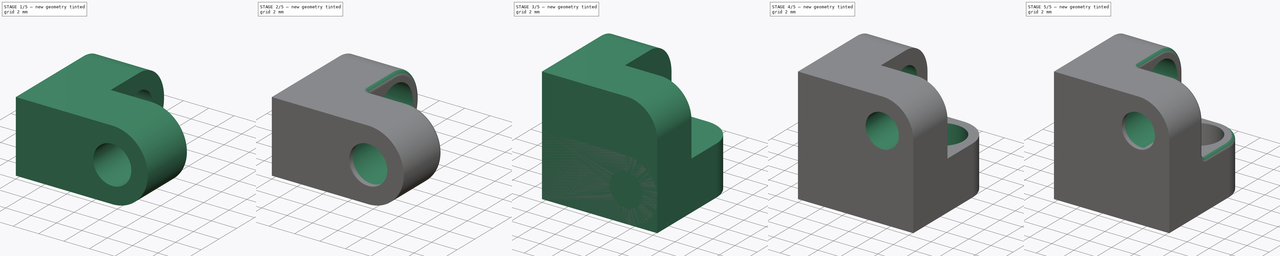
[diagram: build sequence overview — one tinted view per stage of 5, left to right]
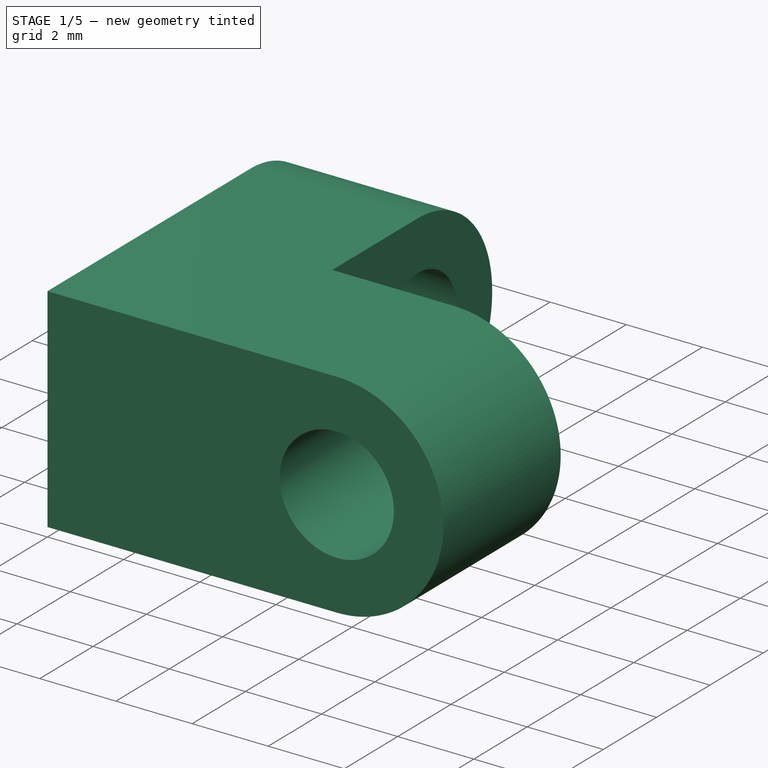
[diagram: stage 1 of 5 — iso view after this stage's code; geometry added in this stage tinted green]
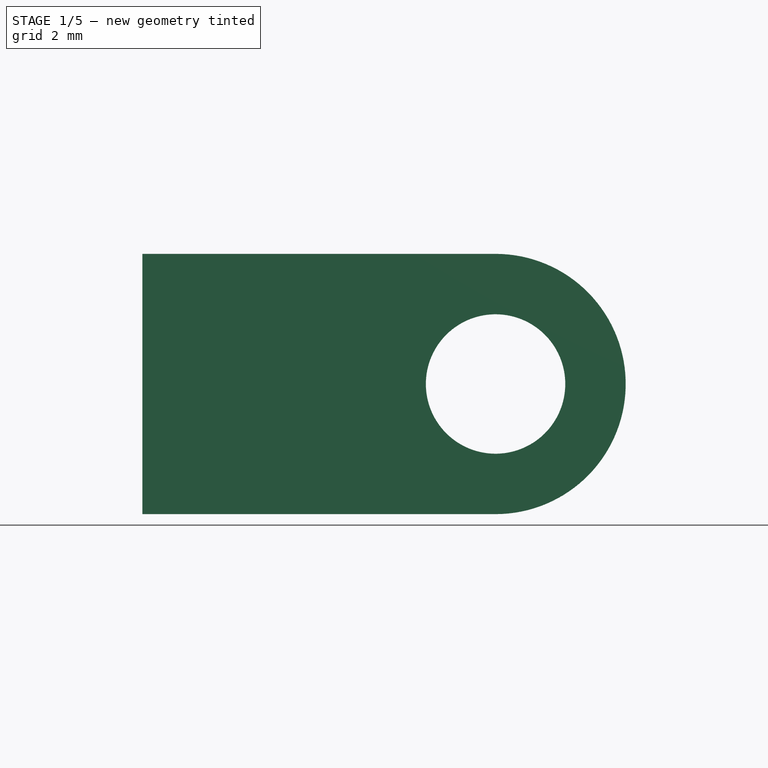
[diagram: stage 1 of 5 — front view after this stage's code; geometry added in this stage tinted green]
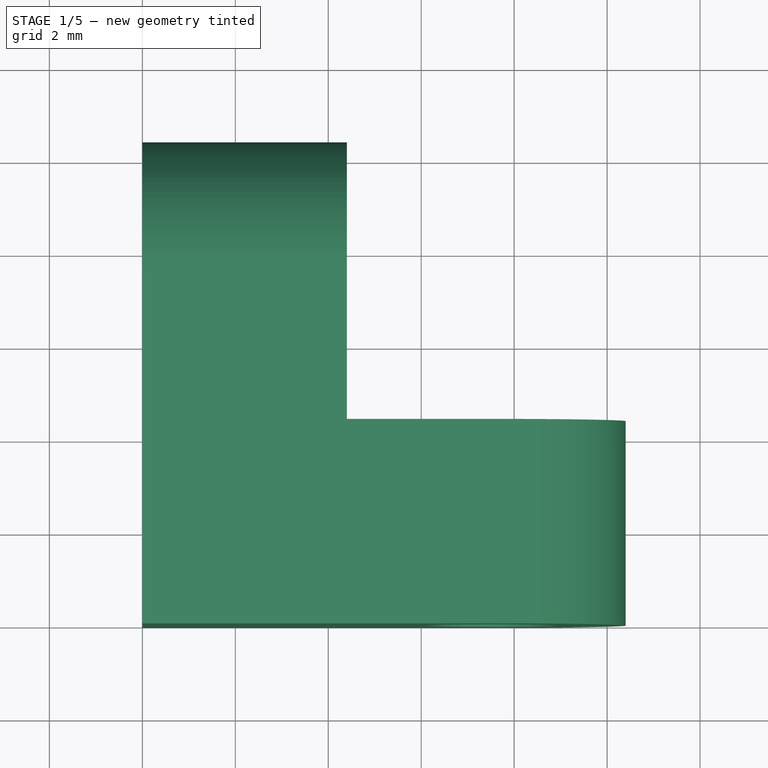
[diagram: stage 1 of 5 — top view after this stage's code; geometry added in this stage tinted green]
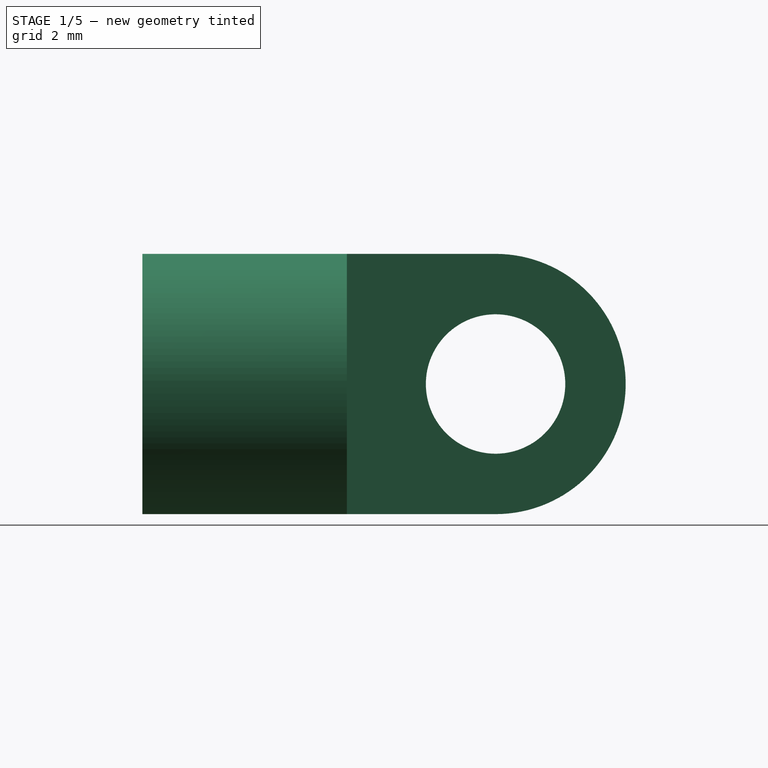
[diagram: stage 1 of 5 — right view after this stage's code; geometry added in this stage tinted green]
FCSTD DOCUMENT  (FreeCAD 1.1R)
Label: parametric-corner-brackets-hole
License: All rights reserved
LicenseURL: https://en.wikipedia.org/wiki/All_rights_reserved
objects: Sketcher::SketchObject×20, PartDesign::Pocket×10, Part::DatumPlane×6, PartDesign::AdditiveLoft×5, PartDesign::Fillet×4, App::Point×2, PartDesign::Body×2, Spreadsheet::Sheet×1, App::DocumentObjectGroup×1
note: 99 computed .brp shape members not serialized (recipe doc carries the construction recipe); baked Part::Feature solids carry a one-line shape summary decoded from their .brp

FEATURE [PartDesign::Body] Body  label="3 Ways Bracket"
  AllowCompound = false
  Group = -> [Sketch,Sketch001,Sketch002,Sketch003,Sketch004,Sketch005,Sketch006,Sketch007,Sketch008,Sketch009,Sketch010,Sketch011,AdditiveLoft,AdditiveLoft001,AdditiveLoft002,Pocket,Pocket001,Pocket002,Pocket003,Pocket004,Pocket005,Fillet,Fillet001]
  Origin = -> Origin
  Placement = pos=(-11.4,0,0) rot=(1,0,0;1.5708rad)
  Tip = -> Fillet001
  expr: .Placement.Base.x = -1.5 * Spreadsheet.center_offset_mm
FEATURE [Part::DatumPlane] DatumPlane003  label="R DatumPlane001"
  AttachmentOffset = pos=(0,0,-4.4) rot=(0,0,1;0rad)
  AttachmentSupport = -> [XZ_Plane001]
  MapMode = 5
  Placement = pos=(0,4.4,-1e-15) rot=(1,0,0;1.5708rad)
  expr: .AttachmentOffset.Base.y = 0
  expr: .AttachmentOffset.Base.z = -1 * Spreadsheet.bracket_thickness_mm
FEATURE [Part::DatumPlane] DatumPlane004  label="L DatumPlane001"
  AttachmentOffset = pos=(0,0,4.4) rot=(0,0,1;0rad)
  AttachmentSupport = -> [YZ_Plane001]
  MapMode = 5
  Placement = pos=(4.4,0,0) rot=(0.57735,0.57735,0.57735;2.0944rad)
  expr: .AttachmentOffset.Base.z = Spreadsheet.bracket_thickness_mm
FEATURE [Part::DatumPlane] DatumPlane005  label="Top DatumPlane001"
  AttachmentOffset = pos=(0,0,4.4) rot=(0,0,1;0rad)
  AttachmentSupport = -> [XY_Plane001]
  MapMode = 5
  Placement = pos=(0,0,4.4) rot=(0,0,1;0rad)
  expr: .AttachmentOffset.Base.z = Spreadsheet.bracket_thickness_mm
FEATURE [App::DocumentObjectGroup] Group  label="Origins & DatumPlane"
  Group = -> [DatumPlane,DatumPlane001,DatumPlane002,DatumPlane003,DatumPlane004,DatumPlane005]
FEATURE [App::Point] Origin003
  Role = Origin
FEATURE [Sketcher::SketchObject] Sketch014  label="L Hole (s)001"
  ArcFitTolerance = 1e-06
  AttachmentSupport = -> [Origin002]
  ExternalTypes = [0]
  FullyConstrained = true
  MakeInternals = false
  MapMode = 5
  Placement = pos=(0,0,0) rot=(0.57735,0.57735,0.57735;2.0944rad)
  expr: Constraints[0] = Spreadsheet.thread_diameter_mm
  expr: Constraints[1] = Spreadsheet.outter_arc_radius_mm
  expr: Constraints[2] = Spreadsheet.center_offset_mm
  sketch-geometry (1):
    g0: Circle CenterX=7.6 CenterY=2.8 CenterZ=0 NormalX=0 NormalY=0 NormalZ=1 AngleXU=0 Radius=1.5
  constraints (3):
    c: Diameter(g0) = 3
    c: Distance(g0,g-1) = 2.8
    c: Distance(g0,g-2) = 7.6
FEATURE [Sketcher::SketchObject] Sketch015  label="L Nut (s)001"
  ArcFitTolerance = 1e-06
  AttachmentSupport = -> [DatumPlane004]
  ExternalTypes = [0]
  FullyConstrained = true
  MakeInternals = false
  MapMode = 5
  Placement = pos=(4.4,0,0) rot=(0.57735,0.57735,0.57735;2.0944rad)
  expr: Constraints[0] = Spreadsheet.outter_arc_radius_mm
  expr: Constraints[1] = Spreadsheet.center_offset_mm
  expr: Constraints[2] = Spreadsheet.insert_diameter_mm
  sketch-geometry (1):
    g0: Circle CenterX=7.6 CenterY=2.8 CenterZ=0 NormalX=0 NormalY=0 NormalZ=1 AngleXU=0 Radius=2
  constraints (3):
    c: Distance(g0,g-1) = 2.8
    c: Distance(g0,g-2) = 7.6
    c: Diameter(g0) = 4
FEATURE [Sketcher::SketchObject] Sketch016  label="R Hole (s)001"
  ArcFitTolerance = 1e-06
  AttachmentSupport = -> [Origin002]
  ExternalTypes = [0]
  FullyConstrained = true
  MakeInternals = false
  MapMode = 5
  Placement = pos=(0,0,0) rot=(1,0,0;1.5708rad)
  expr: Constraints[0] = Spreadsheet.thread_diameter_mm
  expr: Constraints[1] = Spreadsheet.outter_arc_radius_mm
  expr: Constraints[2] = Spreadsheet.center_offset_mm
  sketch-geometry (1):
    g0: Circle CenterX=7.6 CenterY=2.8 CenterZ=0 NormalX=0 NormalY=0 NormalZ=1 AngleXU=0 Radius=1.5
  constraints (3):
    c: Diameter(g0) = 3
    c: Distance(g0,g-1) = 2.8
    c: Distance(g0,g-2) = 7.6
FEATURE [Sketcher::SketchObject] Sketch017  label="R Nut (s)001"
  ArcFitTolerance = 1e-06
  AttachmentSupport = -> [DatumPlane003]
  ExternalTypes = [0]
  FullyConstrained = true
  MakeInternals = false
  MapMode = 5
  Placement = pos=(0,4.4,-1e-15) rot=(1,0,0;1.5708rad)
  expr: Constraints[0] = Spreadsheet.center_offset_mm
  expr: Constraints[1] = Spreadsheet.outter_arc_radius_mm
  expr: Constraints[2] = Spreadsheet.insert_diameter_mm
  sketch-geometry (1):
    g0: Circle CenterX=7.6 CenterY=2.8 CenterZ=0 NormalX=0 NormalY=0 NormalZ=1 AngleXU=0 Radius=2
  constraints (3):
    c: Distance(g0,g-2) = 7.6
    c: Distance(g0,g-1) = 2.8
    c: Diameter(g0) = 4
FEATURE [Sketcher::SketchObject] Sketch018  label="R Face (s)001"
  ArcFitTolerance = 1e-06
  AttachmentSupport = -> [Origin002]
  ExternalTypes = [0]
  FullyConstrained = true
  MakeInternals = false
  MapMode = 5
  Placement = pos=(0,0,0) rot=(1,0,0;1.5708rad)
  expr: Constraints[1] = Spreadsheet.center_offset_mm
  expr: Constraints[2] = Spreadsheet.outter_arc_radius_mm
  sketch-geometry (5):
    g0: ArcOfCircle CenterX=7.6 CenterY=2.8 CenterZ=0 NormalX=0 NormalY=0 NormalZ=1 AngleXU=0 Radius=2.8 StartAngle=4.71239 EndAngle=7.85398
    g1: LineSegment StartX=7.6 StartY=5.6 StartZ=0 EndX=0 EndY=5.6 EndZ=0
    g2: LineSegment StartX=0 StartY=5.6 StartZ=0 EndX=0 EndY=0 EndZ=0
    g3: LineSegment StartX=0 StartY=0 StartZ=0 EndX=7.6 EndY=0 EndZ=0
    g4: LineSegment [constr] StartX=0 StartY=0 StartZ=0 EndX=93.8343 EndY=34.5705 EndZ=0
  constraints (14):
    c: Angle(g0) = 3.14159
    c: Distance(g0,g-2) = 7.6
    c: Distance(g0,g0) = 2.8
    c: PointOnObject(g1,g-2)
    c: Horizontal(g1)
    c: Coincident(g1,g2)
    c: Coincident(g2,g-1)
    c: Coincident(g2,g3)
    c: PointOnObject(g3,g-1)
    c: Coincident(g4,g2)
    c: Distance(g4,g4) = 100
    c: Tangent(g1,g0) = -1.5708
    c: PointOnObject(g0,g4)
    c: Coincident(g0,g3)
FEATURE [Sketcher::SketchObject] Sketch020  label="L Face (s)001"
  ArcFitTolerance = 1e-06
  AttachmentSupport = -> [Origin002]
  ExternalTypes = [0]
  FullyConstrained = true
  MakeInternals = false
  MapMode = 5
  Placement = pos=(0,0,0) rot=(0.57735,0.57735,0.57735;2.0944rad)
  expr: Constraints[1] = Spreadsheet.center_offset_mm
  expr: Constraints[2] = Spreadsheet.outter_arc_radius_mm
  sketch-geometry (5):
    g0: ArcOfCircle CenterX=7.6 CenterY=2.8 CenterZ=0 NormalX=0 NormalY=0 NormalZ=1 AngleXU=0 Radius=2.8 StartAngle=4.71239 EndAngle=7.85398
    g1: LineSegment [constr] StartX=0 StartY=0 StartZ=0 EndX=93.8343 EndY=34.5705 EndZ=0
    g2: LineSegment StartX=7.6 StartY=5.6 StartZ=0 EndX=0 EndY=5.6 EndZ=0
    g3: LineSegment StartX=0 StartY=5.6 StartZ=0 EndX=0 EndY=0 EndZ=0
    g4: LineSegment StartX=0 StartY=0 StartZ=0 EndX=7.6 EndY=0 EndZ=0
  constraints (14):
    c: Angle(g0) = 3.14159
    c: Distance(g0,g-2) = 7.6
    c: Distance(g0,g0) = 2.8
    c: Coincident(g1,g-1)
    c: PointOnObject(g0,g1)
    c: Distance(g1,g1) = 100
    c: PointOnObject(g2,g-2)
    c: Horizontal(g2)
    c: Coincident(g2,g3)
    c: Coincident(g3,g1)
    c: Coincident(g3,g4)
    c: PointOnObject(g4,g-1)
    c: Tangent(g2,g0) = -1.5708
    c: Coincident(g0,g4)
FEATURE [Sketcher::SketchObject] Sketch021  label="R Face Top (s)001"
  ArcFitTolerance = 1e-06
  AttachmentSupport = -> [DatumPlane003]
  ExternalTypes = [0]
  FullyConstrained = true
  MakeInternals = false
  MapMode = 5
  Placement = pos=(0,4.4,-1e-15) rot=(1,0,0;1.5708rad)
  expr: Constraints[1] = Spreadsheet.center_offset_mm
  expr: Constraints[2] = Spreadsheet.outter_arc_radius_mm
  sketch-geometry (5):
    g0: ArcOfCircle CenterX=7.6 CenterY=2.8 CenterZ=0 NormalX=0 NormalY=0 NormalZ=1 AngleXU=0 Radius=2.8 StartAngle=4.71239 EndAngle=7.85398
    g1: LineSegment [constr] StartX=0 StartY=0 StartZ=0 EndX=93.8343 EndY=34.5705 EndZ=0
    g2: LineSegment StartX=7.6 StartY=5.6 StartZ=0 EndX=0 EndY=5.6 EndZ=0
    g3: LineSegment StartX=0 StartY=5.6 StartZ=0 EndX=0 EndY=0 EndZ=0
    g4: LineSegment StartX=0 StartY=0 StartZ=0 EndX=7.6 EndY=0 EndZ=0
  constraints (14):
    c: Angle(g0) = 3.14159
    c: Distance(g0,g-2) = 7.6
    c: Distance(g0,g0) = 2.8
    c: Coincident(g1,g-1)
    c: PointOnObject(g0,g1)
    c: Distance(g1,g1) = 100
    c: PointOnObject(g2,g-2)
    c: Horizontal(g2)
    c: Coincident(g2,g3)
    c: Coincident(g3,g1)
    c: Coincident(g3,g4)
    c: PointOnObject(g4,g-1)
    c: Tangent(g2,g0) = -1.5708
    c: Coincident(g0,g4)
FEATURE [PartDesign::AdditiveLoft] AdditiveLoft003  label="R Face001"
  Closed = true
  Placement = pos=(0,4.4,-1e-15) rot=(1,0,0;1.5708rad)
  Profile = -> Sketch021
  Refine = true
  Ruled = true
  Sections = -> [Sketch018]
  Suppressed = false
FEATURE [Sketcher::SketchObject] Sketch022  label="L Face Top (s)001"
  ArcFitTolerance = 1e-06
  AttachmentSupport = -> [DatumPlane004]
  ExternalTypes = [0]
  FullyConstrained = true
  MakeInternals = false
  MapMode = 5
  Placement = pos=(4.4,0,0) rot=(0.57735,0.57735,0.57735;2.0944rad)
  expr: Constraints[1] = Spreadsheet.center_offset_mm
  expr: Constraints[2] = Spreadsheet.outter_arc_radius_mm
  sketch-geometry (5):
    g0: ArcOfCircle CenterX=7.6 CenterY=2.8 CenterZ=0 NormalX=0 NormalY=0 NormalZ=1 AngleXU=0 Radius=2.8 StartAngle=4.71239 EndAngle=7.85398
    g1: LineSegment [constr] StartX=0 StartY=0 StartZ=0 EndX=93.8343 EndY=34.5705 EndZ=0
    g2: LineSegment StartX=7.6 StartY=5.6 StartZ=0 EndX=0 EndY=5.6 EndZ=0
    g3: LineSegment StartX=0 StartY=5.6 StartZ=0 EndX=0 EndY=0 EndZ=0
    g4: LineSegment StartX=0 StartY=0 StartZ=0 EndX=7.6 EndY=0 EndZ=0
  constraints (14):
    c: Angle(g0) = 3.14159
    c: Distance(g0,g-2) = 7.6
    c: Distance(g0,g0) = 2.8
    c: Coincident(g1,g-1)
    c: PointOnObject(g0,g1)
    c: Distance(g1,g1) = 100
    c: PointOnObject(g2,g-2)
    c: Horizontal(g2)
    c: Coincident(g2,g3)
    c: Coincident(g3,g1)
    c: Coincident(g3,g4)
    c: PointOnObject(g4,g-1)
    c: Tangent(g2,g0) = -1.5708
    c: Coincident(g0,g4)
FEATURE [PartDesign::AdditiveLoft] AdditiveLoft004  label="L Face001"
  BaseFeature = -> AdditiveLoft003
  Closed = false
  Placement = pos=(0,4.4,-1e-15) rot=(1,0,0;1.5708rad)
  Profile = -> Sketch020
  Refine = true
  Ruled = false
  Sections = -> [Sketch022]
  Suppressed = false
FEATURE [PartDesign::Pocket] Pocket006
  BaseFeature = -> AdditiveLoft004
  Direction = (-1,0,0)
  Length = 100
  Length2 = 5
  Placement = pos=(0,4.4,-1e-15) rot=(1,0,0;1.5708rad)
  Profile = -> Sketch014
  ReferenceAxis = -> Sketch014 [N_Axis]
  Refine = true
  SideType = 2
  Suppressed = false
  Type = 0
  Type2 = 0
FEATURE [PartDesign::Pocket] Pocket007
  BaseFeature = -> Pocket006
  Direction = (0,1,-2e-16)
  Length = 100
  Length2 = 5
  Placement = pos=(0,4.4,-1e-15) rot=(1,0,0;1.5708rad)
  Profile = -> Sketch016
  ReferenceAxis = -> Sketch016 [N_Axis]
  Refine = true
  SideType = 2
  Suppressed = false
  Type = 0
  Type2 = 0
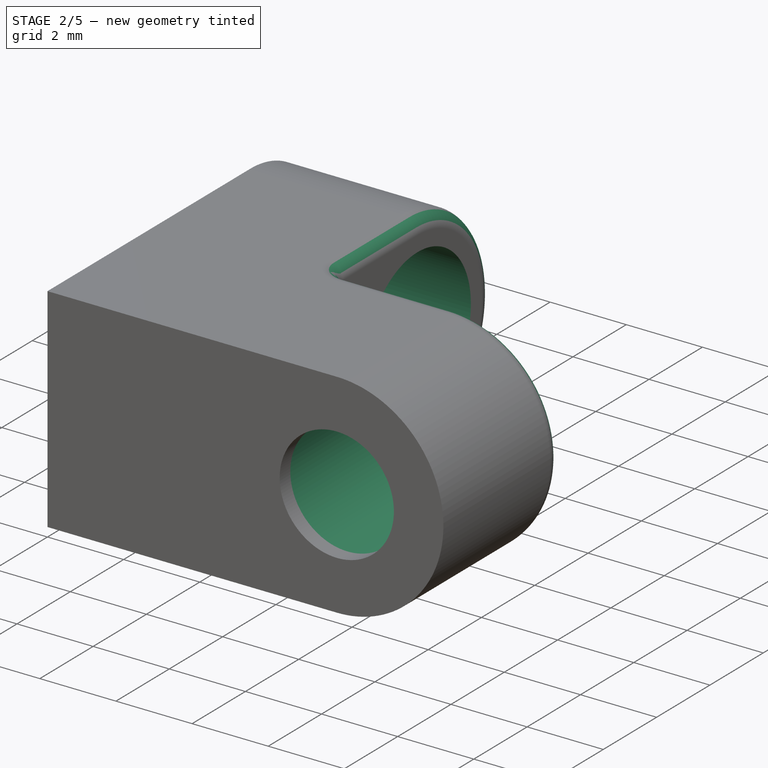
[diagram: stage 2 of 5 — iso view after this stage's code; geometry added in this stage tinted green]
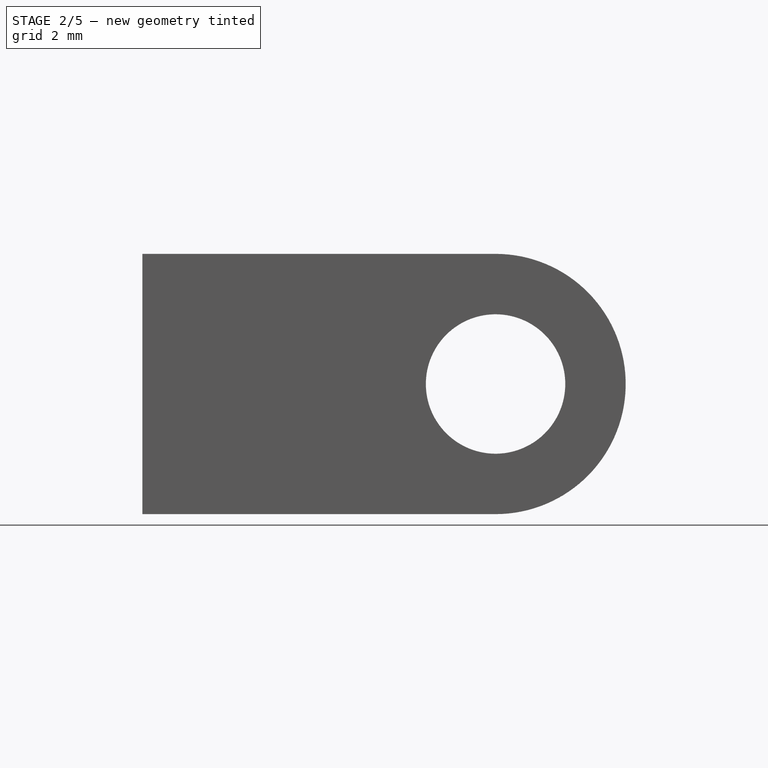
[diagram: stage 2 of 5 — front view after this stage's code; geometry added in this stage tinted green]
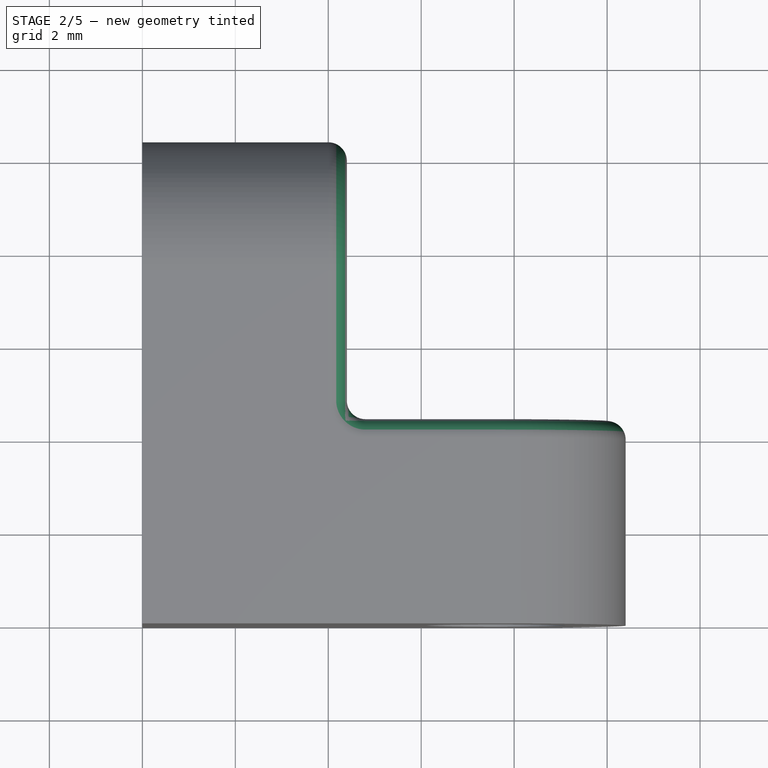
[diagram: stage 2 of 5 — top view after this stage's code; geometry added in this stage tinted green]
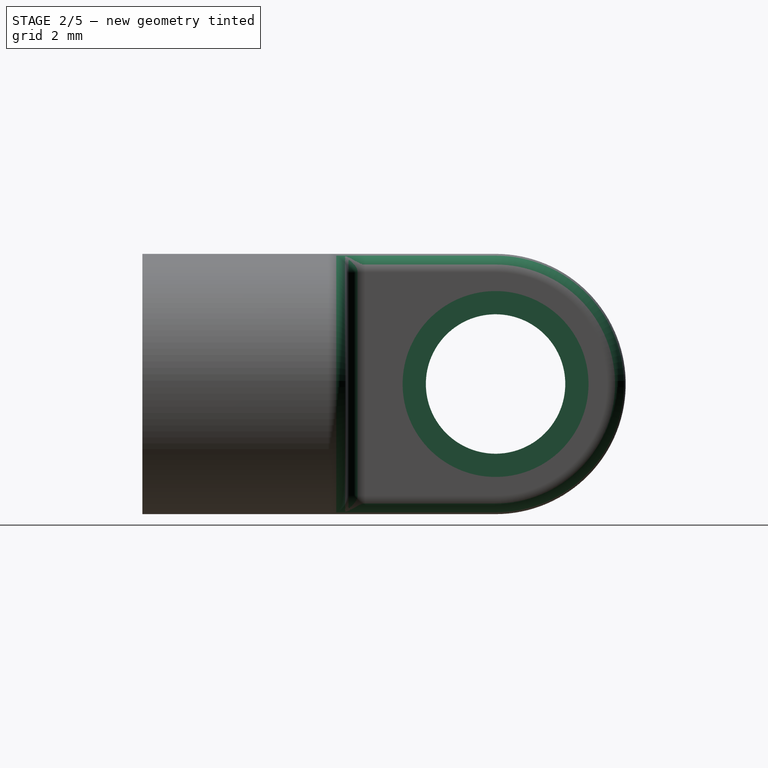
[diagram: stage 2 of 5 — right view after this stage's code; geometry added in this stage tinted green]
FEATURE [PartDesign::Pocket] Pocket008
  BaseFeature = -> Pocket007
  Direction = (-1,0,0)
  Length = 4
  Length2 = 5
  Placement = pos=(0,4.4,-1e-15) rot=(1,0,0;1.5708rad)
  Profile = -> Sketch015
  ReferenceAxis = -> Sketch015 [N_Axis]
  Refine = true
  SideType = 0
  Suppressed = false
  Type = 0
  Type2 = 0
  expr: Length = Spreadsheet.insert_depth_mm
FEATURE [PartDesign::Pocket] Pocket009
  BaseFeature = -> Pocket008
  Direction = (0,1,-2e-16)
  Length = 4
  Length2 = 5
  Placement = pos=(0,4.4,-1e-15) rot=(1,0,0;1.5708rad)
  Profile = -> Sketch017
  ReferenceAxis = -> Sketch017 [N_Axis]
  Refine = true
  Reversed = true
  SideType = 0
  Suppressed = false
  Type = 0
  Type2 = 0
  expr: Length = Spreadsheet.insert_depth_mm
FEATURE [PartDesign::Fillet] Fillet002
  Base = -> Pocket009 [Edge4]
  BaseFeature = -> Pocket009
  Placement = pos=(0,4.4,-1e-15) rot=(1,0,0;1.5708rad)
  Radius = 0.4
  Refine = true
  SupportTransform = false
  Suppressed = false
  UseAllEdges = false
  expr: Radius = Spreadsheet.fillet_radius_mm
FEATURE [PartDesign::Fillet] Fillet003
  Base = -> Fillet002 [Edge24,Edge3]
  BaseFeature = -> Fillet002
  Placement = pos=(0,4.4,-1e-15) rot=(1,0,0;1.5708rad)
  Radius = 0.4
  Refine = true
  SupportTransform = false
  Suppressed = false
  UseAllEdges = false
  expr: Radius = Spreadsheet.fillet_radius_mm
FEATURE [PartDesign::Body] Body001  label="2 Ways Bracket"
  AllowCompound = false
  Group = -> [Sketch014,Sketch015,Sketch016,Sketch017,Sketch018,Sketch020,Sketch021,Sketch022,AdditiveLoft003,AdditiveLoft004,Pocket006,Pocket007,Pocket008,Pocket009,Fillet002,Fillet003]
  Origin = -> Origin002
  Placement = pos=(11.4,0,0) rot=(0.707107,0,0.707107;3.14159rad)
  Tip = -> Fillet003
  expr: .Placement.Base.x = 1.5 * Spreadsheet.center_offset_mm
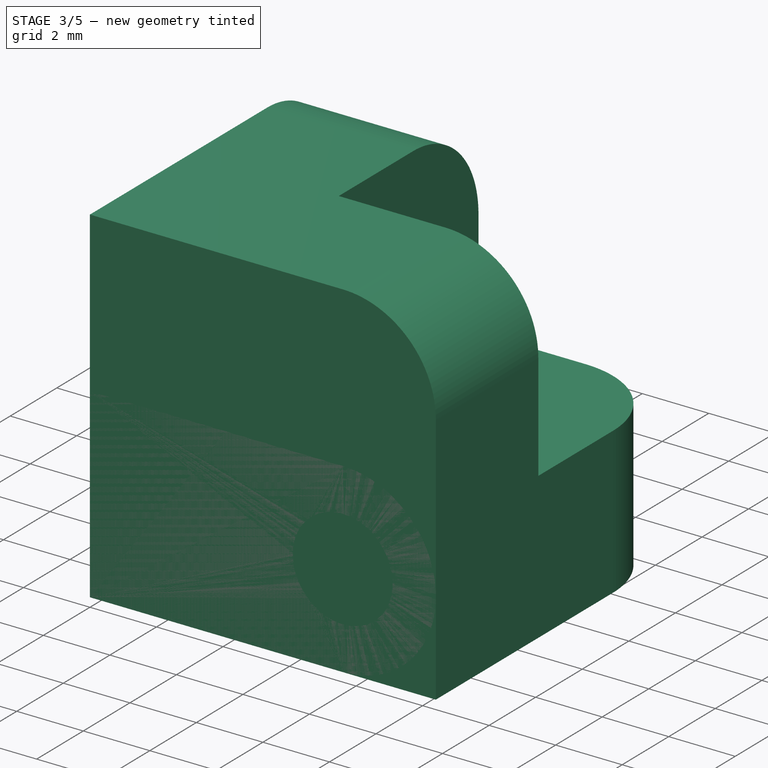
[diagram: stage 3 of 5 — iso view after this stage's code; geometry added in this stage tinted green]
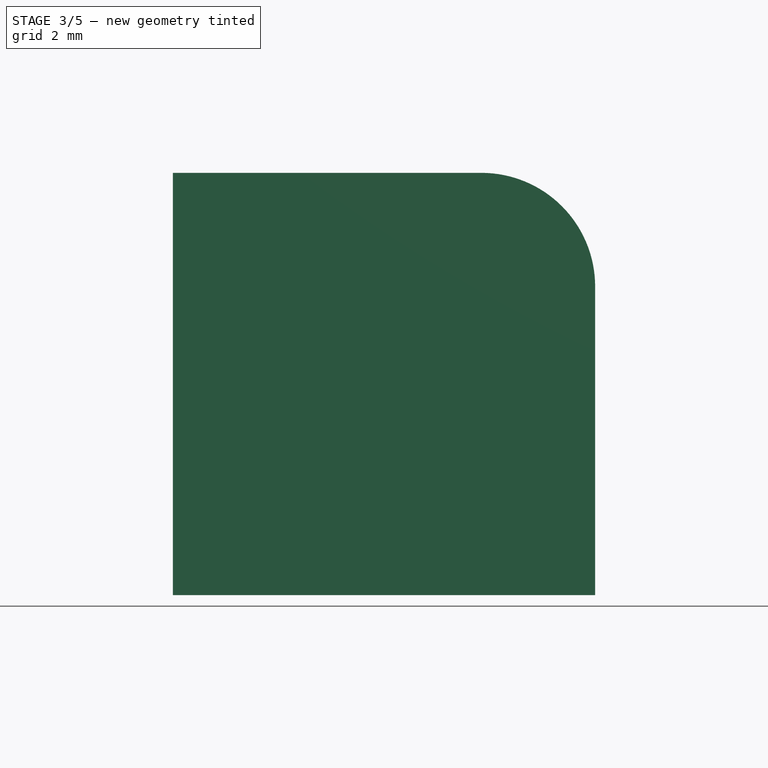
[diagram: stage 3 of 5 — front view after this stage's code; geometry added in this stage tinted green]
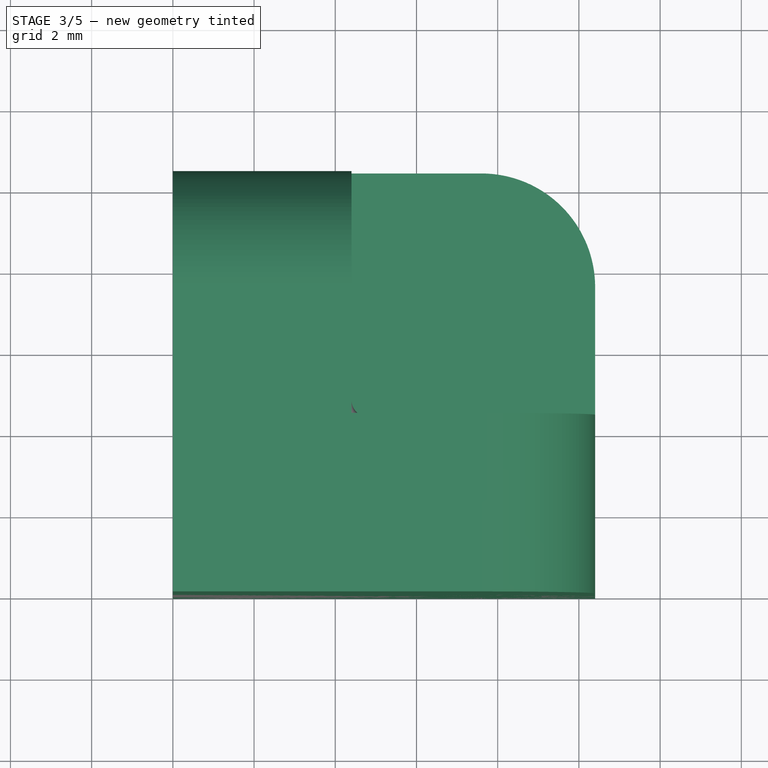
[diagram: stage 3 of 5 — top view after this stage's code; geometry added in this stage tinted green]
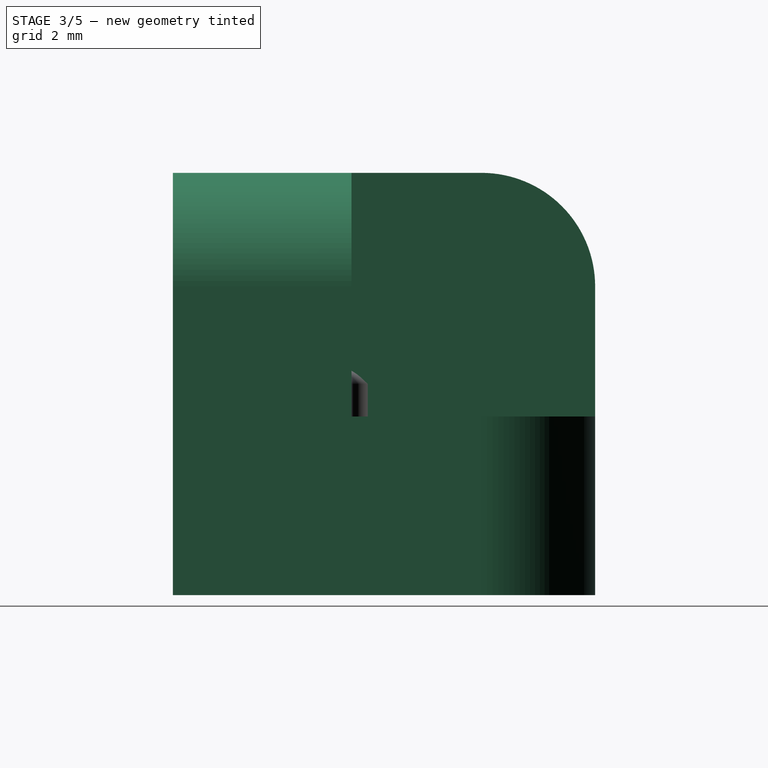
[diagram: stage 3 of 5 — right view after this stage's code; geometry added in this stage tinted green]
FEATURE [Spreadsheet::Sheet] Spreadsheet  label="Dimensions"
  cells = A1='Input Dimensions; A2='Thread Diameter; B2(thread_diameter_mm)=3; A3='Hole/Insert Diameter; B3(insert_diameter_mm)=4; A4='Hole/Insert Height; B4(insert_height_mm)=4; A5='Bracket Width (optional, set to 0 for default); B5(bracket_width_mm)=0; A7='Computed Values; A8='Center Offset; B8(center_offset_mm)==outter_arc_radius_mm + insert_height_mm + wall_thickness_mm; A9='Outter Arc Radius; B9(outter_arc_radius_mm)==max(insert_diameter_mm / 2 + wall_thickness_mm; bracket_width_mm / 2); A10='Bracket Thickness; B10(bracket_thickness_mm)==insert_height_mm + wall_thickness_mm / 2; A11='Insert/Hole Depth; B11(insert_depth_mm)==insert_height_mm; A12='Wall Thickness; B12(wall_thickness_mm)==insert_diameter_mm / 5; A13='Fillet Radius; B13(fillet_radius_mm)==wall_thickness_mm / 2
FEATURE [Sketcher::SketchObject] Sketch  label="Top Hole (s)"
  ArcFitTolerance = 1e-06
  AttachmentSupport = -> [Origin]
  ExternalTypes = [0]
  FullyConstrained = true
  MakeInternals = false
  MapMode = 5
  expr: Constraints[0] = Spreadsheet.thread_diameter_mm
  expr: Constraints[4] = Spreadsheet.center_offset_mm
  sketch-geometry (2):
    g0: Circle CenterX=7.6 CenterY=7.6 CenterZ=0 NormalX=0 NormalY=0 NormalZ=1 AngleXU=0 Radius=1.5
    g1: LineSegment [constr] StartX=0 StartY=0 StartZ=0 EndX=70.7107 EndY=70.7107 EndZ=0
  constraints (6):
    c: Diameter(g0) = 3
    c: Coincident(g1,g-1)
    c: Angle(g-1,g1) = 0.785398
    c: PointOnObject(g0,g1)
    c: Distance(g0,g-2) = 7.6
    c: Distance(g1,g1) = 100
FEATURE [Sketcher::SketchObject] Sketch002  label="L Hole (s)"
  ArcFitTolerance = 1e-06
  AttachmentSupport = -> [Origin]
  ExternalTypes = [0]
  FullyConstrained = true
  MakeInternals = false
  MapMode = 5
  Placement = pos=(0,0,0) rot=(0.57735,0.57735,0.57735;2.0944rad)
  expr: Constraints[0] = Spreadsheet.thread_diameter_mm
  expr: Constraints[1] = Spreadsheet.center_offset_mm
  expr: Constraints[2] = Spreadsheet.center_offset_mm
  sketch-geometry (1):
    g0: Circle CenterX=7.6 CenterY=7.6 CenterZ=0 NormalX=0 NormalY=0 NormalZ=1 AngleXU=0 Radius=1.5
  constraints (3):
    c: Diameter(g0) = 3
    c: Distance(g0,g-1) = 7.6
    c: Distance(g0,g-2) = 7.6
FEATURE [Sketcher::SketchObject] Sketch004  label="R Hole (s)"
  ArcFitTolerance = 1e-06
  AttachmentSupport = -> [Origin]
  ExternalTypes = [0]
  FullyConstrained = true
  MakeInternals = false
  MapMode = 5
  Placement = pos=(0,0,0) rot=(1,0,0;1.5708rad)
  expr: Constraints[0] = Spreadsheet.thread_diameter_mm
  expr: Constraints[1] = Spreadsheet.center_offset_mm
  expr: Constraints[2] = Spreadsheet.center_offset_mm
  sketch-geometry (1):
    g0: Circle CenterX=7.6 CenterY=7.6 CenterZ=0 NormalX=0 NormalY=0 NormalZ=1 AngleXU=0 Radius=1.5
  constraints (3):
    c: Diameter(g0) = 3
    c: Distance(g0,g-1) = 7.6
    c: Distance(g0,g-2) = 7.6
FEATURE [Sketcher::SketchObject] Sketch006  label="R Face (s)"
  ArcFitTolerance = 1e-06
  AttachmentSupport = -> [Origin]
  ExternalTypes = [0]
  FullyConstrained = true
  MakeInternals = false
  MapMode = 5
  Placement = pos=(0,0,0) rot=(1,0,0;1.5708rad)
  expr: Constraints[1] = Spreadsheet.center_offset_mm
  expr: Constraints[2] = Spreadsheet.center_offset_mm
  expr: Constraints[3] = Spreadsheet.outter_arc_radius_mm
  sketch-geometry (6):
    g0: ArcOfCircle CenterX=7.6 CenterY=7.6 CenterZ=0 NormalX=0 NormalY=0 NormalZ=1 AngleXU=0 Radius=2.8 StartAngle=3.26795e-07 EndAngle=1.5708
    g1: LineSegment StartX=7.6 StartY=10.4 StartZ=0 EndX=0 EndY=10.4 EndZ=0
    g2: LineSegment StartX=0 StartY=10.4 StartZ=0 EndX=0 EndY=0 EndZ=0
    g3: LineSegment StartX=0 StartY=0 StartZ=0 EndX=10.4 EndY=0 EndZ=0
    g4: LineSegment StartX=10.4 StartY=0 StartZ=0 EndX=10.4 EndY=7.6 EndZ=0
    g5: LineSegment [constr] StartX=0 StartY=0 StartZ=0 EndX=70.7107 EndY=70.7107 EndZ=0
  constraints (17):
    c: Angle(g0) = 1.5708
    c: Distance(g0,g-1) = 7.6
    c: Distance(g0,g-2) = 7.6
    c: Distance(g0,g0) = 2.8
    c: PointOnObject(g1,g-2)
    c: Horizontal(g1)
    c: Coincident(g1,g2)
    c: Coincident(g2,g-1)
    c: Coincident(g2,g3)
    c: PointOnObject(g3,g-1)
    c: Coincident(g3,g4)
    c: Coincident(g4,g0)
    c: Perpendicular(g4,g3)
    c: Coincident(g5,g2)
    c: Distance(g5,g5) = 100
    c: Tangent(g1,g0) = -1.5708
    c: PointOnObject(g0,g5)
FEATURE [Sketcher::SketchObject] Sketch007  label="Top Face (s)"
  ArcFitTolerance = 1e-06
  AttachmentSupport = -> [Origin]
  ExternalTypes = [0]
  FullyConstrained = true
  MakeInternals = false
  MapMode = 5
  expr: Constraints[1] = Spreadsheet.center_offset_mm
  expr: Constraints[2] = Spreadsheet.center_offset_mm
  expr: Constraints[3] = Spreadsheet.outter_arc_radius_mm
  sketch-geometry (6):
    g0: ArcOfCircle CenterX=7.6 CenterY=7.6 CenterZ=0 NormalX=0 NormalY=0 NormalZ=1 AngleXU=0 Radius=2.8 StartAngle=1.63397e-07 EndAngle=1.5708
    g1: LineSegment [constr] StartX=0 StartY=0 StartZ=0 EndX=212.132 EndY=212.132 EndZ=0
    g2: LineSegment StartX=0 StartY=10.4 StartZ=0 EndX=0 EndY=0 EndZ=0
    g3: LineSegment StartX=0 StartY=0 StartZ=0 EndX=10.4 EndY=0 EndZ=0
    g4: LineSegment StartX=10.4 StartY=0 StartZ=0 EndX=10.4 EndY=7.6 EndZ=0
    g5: LineSegment StartX=0 StartY=10.4 StartZ=0 EndX=7.6 EndY=10.4 EndZ=0
  constraints (16):
    c: Angle(g0) = 1.5708
    c: Distance(g0,g-1) = 7.6
    c: Distance(g0,g-2) = 7.6
    c: Distance(g0,g0) = 2.8
    c: Coincident(g1,g-1)
    c: Symmetric(g0,g0,g1)
    c: PointOnObject(g2,g-2)
    c: Coincident(g2,g1)
    c: Coincident(g2,g3)
    c: PointOnObject(g3,g-1)
    c: Coincident(g3,g4)
    c: Coincident(g4,g0)
    c: Perpendicular(g3,g4)
    c: Distance(g1,g1) = 300
    c: Coincident(g5,g2)
    c: Tangent(g5,g0) = 1.5708
FEATURE [Sketcher::SketchObject] Sketch008  label="L Face (s)"
  ArcFitTolerance = 1e-06
  AttachmentSupport = -> [Origin]
  ExternalTypes = [0]
  FullyConstrained = true
  MakeInternals = false
  MapMode = 5
  Placement = pos=(0,0,0) rot=(0.57735,0.57735,0.57735;2.0944rad)
  expr: Constraints[1] = Spreadsheet.center_offset_mm
  expr: Constraints[2] = Spreadsheet.center_offset_mm
  expr: Constraints[3] = Spreadsheet.outter_arc_radius_mm
  sketch-geometry (6):
    g0: ArcOfCircle CenterX=7.6 CenterY=7.6 CenterZ=0 NormalX=0 NormalY=0 NormalZ=1 AngleXU=0 Radius=2.8 StartAngle=3.26795e-07 EndAngle=1.5708
    g1: LineSegment [constr] StartX=0 StartY=0 StartZ=0 EndX=70.7107 EndY=70.7107 EndZ=0
    g2: LineSegment StartX=7.6 StartY=10.4 StartZ=0 EndX=0 EndY=10.4 EndZ=0
    g3: LineSegment StartX=0 StartY=10.4 StartZ=0 EndX=0 EndY=0 EndZ=0
    g4: LineSegment StartX=0 StartY=0 StartZ=0 EndX=10.4 EndY=0 EndZ=0
    g5: LineSegment StartX=10.4 StartY=0 StartZ=0 EndX=10.4 EndY=7.6 EndZ=0
  constraints (17):
    c: Angle(g0) = 1.5708
    c: Distance(g0,g-1) = 7.6
    c: Distance(g0,g-2) = 7.6
    c: Distance(g0,g0) = 2.8
    c: Coincident(g1,g-1)
    c: PointOnObject(g0,g1)
    c: Distance(g1,g1) = 100
    c: PointOnObject(g2,g-2)
    c: Horizontal(g2)
    c: Coincident(g2,g3)
    c: Coincident(g3,g1)
    c: Coincident(g3,g4)
    c: PointOnObject(g4,g-1)
    c: Coincident(g4,g5)
    c: Coincident(g5,g0)
    c: Perpendicular(g4,g5)
    c: Tangent(g2,g0) = -1.5708
FEATURE [Part::DatumPlane] DatumPlane  label="R DatumPlane"
  AttachmentOffset = pos=(0,0,-4.4) rot=(0,0,1;0rad)
  AttachmentSupport = -> [XZ_Plane]
  MapMode = 5
  Placement = pos=(0,4.4,-1e-15) rot=(1,0,0;1.5708rad)
  expr: .AttachmentOffset.Base.y = 0
  expr: .AttachmentOffset.Base.z = -1 * Spreadsheet.bracket_thickness_mm
FEATURE [Sketcher::SketchObject] Sketch005  label="R Nut (s)"
  ArcFitTolerance = 1e-06
  AttachmentSupport = -> [DatumPlane]
  ExternalTypes = [0]
  FullyConstrained = true
  MakeInternals = false
  MapMode = 5
  Placement = pos=(0,4.4,-1e-15) rot=(1,0,0;1.5708rad)
  expr: Constraints[0] = Spreadsheet.center_offset_mm
  expr: Constraints[1] = Spreadsheet.center_offset_mm
  expr: Constraints[4] = Spreadsheet.insert_diameter_mm
  sketch-geometry (2):
    g0: LineSegment [constr] StartX=0 StartY=0 StartZ=0 EndX=7.6 EndY=7.6 EndZ=0
    g1: Circle CenterX=7.6 CenterY=7.6 CenterZ=0 NormalX=0 NormalY=0 NormalZ=1 AngleXU=0 Radius=2
  constraints (5):
    c: Distance(g0,g-2) = 7.6
    c: Distance(g0,g-1) = 7.6
    c: Coincident(g0,g-1)
    c: Coincident(g1,g0)
    c: Diameter(g1) = 4
FEATURE [Sketcher::SketchObject] Sketch009  label="R Face Top (s)"
  ArcFitTolerance = 1e-06
  AttachmentSupport = -> [DatumPlane]
  ExternalTypes = [0]
  FullyConstrained = true
  MakeInternals = false
  MapMode = 5
  Placement = pos=(0,4.4,-1e-15) rot=(1,0,0;1.5708rad)
  expr: Constraints[1] = Spreadsheet.center_offset_mm
  expr: Constraints[2] = Spreadsheet.center_offset_mm
  expr: Constraints[3] = Spreadsheet.outter_arc_radius_mm
  sketch-geometry (6):
    g0: ArcOfCircle CenterX=7.6 CenterY=7.6 CenterZ=0 NormalX=0 NormalY=0 NormalZ=1 AngleXU=0 Radius=2.8 StartAngle=3.26795e-07 EndAngle=1.5708
    g1: LineSegment [constr] StartX=0 StartY=0 StartZ=0 EndX=70.7107 EndY=70.7107 EndZ=0
    g2: LineSegment StartX=7.6 StartY=10.4 StartZ=0 EndX=0 EndY=10.4 EndZ=0
    g3: LineSegment StartX=0 StartY=10.4 StartZ=0 EndX=0 EndY=0 EndZ=0
    g4: LineSegment StartX=0 StartY=0 StartZ=0 EndX=10.4 EndY=0 EndZ=0
    g5: LineSegment StartX=10.4 StartY=0 StartZ=0 EndX=10.4 EndY=7.6 EndZ=0
  constraints (17):
    c: Angle(g0) = 1.5708
    c: Distance(g0,g-1) = 7.6
    c: Distance(g0,g-2) = 7.6
    c: Distance(g0,g0) = 2.8
    c: Coincident(g1,g-1)
    c: PointOnObject(g0,g1)
    c: Distance(g1,g1) = 100
    c: PointOnObject(g2,g-2)
    c: Horizontal(g2)
    c: Coincident(g2,g3)
    c: Coincident(g3,g1)
    c: Coincident(g3,g4)
    c: PointOnObject(g4,g-1)
    c: Coincident(g4,g5)
    c: Coincident(g5,g0)
    c: Perpendicular(g4,g5)
    c: Tangent(g2,g0) = -1.5708
FEATURE [Part::DatumPlane] DatumPlane001  label="L DatumPlane"
  AttachmentOffset = pos=(0,0,4.4) rot=(0,0,1;0rad)
  AttachmentSupport = -> [YZ_Plane]
  MapMode = 5
  Placement = pos=(4.4,0,0) rot=(0.57735,0.57735,0.57735;2.0944rad)
  expr: .AttachmentOffset.Base.z = Spreadsheet.bracket_thickness_mm
FEATURE [Sketcher::SketchObject] Sketch003  label="L Nut (s)"
  ArcFitTolerance = 1e-06
  AttachmentSupport = -> [DatumPlane001]
  ExternalTypes = [0]
  FullyConstrained = true
  MakeInternals = false
  MapMode = 5
  Placement = pos=(4.4,0,0) rot=(0.57735,0.57735,0.57735;2.0944rad)
  expr: Constraints[0] = Spreadsheet.center_offset_mm
  expr: Constraints[1] = Spreadsheet.center_offset_mm
  expr: Constraints[4] = Spreadsheet.insert_diameter_mm
  sketch-geometry (2):
    g0: LineSegment [constr] StartX=0 StartY=0 StartZ=0 EndX=7.6 EndY=7.6 EndZ=0
    g1: Circle CenterX=7.6 CenterY=7.6 CenterZ=0 NormalX=0 NormalY=0 NormalZ=1 AngleXU=0 Radius=2
  constraints (5):
    c: Distance(g0,g-1) = 7.6
    c: Distance(g0,g-2) = 7.6
    c: Coincident(g0,g-1)
    c: Coincident(g1,g0)
    c: Diameter(g1) = 4
FEATURE [Sketcher::SketchObject] Sketch010  label="L Face Top (s)"
  ArcFitTolerance = 1e-06
  AttachmentSupport = -> [DatumPlane001]
  ExternalTypes = [0]
  FullyConstrained = true
  MakeInternals = false
  MapMode = 5
  Placement = pos=(4.4,0,0) rot=(0.57735,0.57735,0.57735;2.0944rad)
  expr: Constraints[1] = Spreadsheet.center_offset_mm
  expr: Constraints[2] = Spreadsheet.center_offset_mm
  expr: Constraints[3] = Spreadsheet.outter_arc_radius_mm
  sketch-geometry (6):
    g0: ArcOfCircle CenterX=7.6 CenterY=7.6 CenterZ=0 NormalX=0 NormalY=0 NormalZ=1 AngleXU=0 Radius=2.8 StartAngle=3.26795e-07 EndAngle=1.5708
    g1: LineSegment [constr] StartX=0 StartY=0 StartZ=0 EndX=70.7107 EndY=70.7107 EndZ=0
    g2: LineSegment StartX=7.6 StartY=10.4 StartZ=0 EndX=0 EndY=10.4 EndZ=0
    g3: LineSegment StartX=0 StartY=10.4 StartZ=0 EndX=0 EndY=0 EndZ=0
    g4: LineSegment StartX=0 StartY=0 StartZ=0 EndX=10.4 EndY=0 EndZ=0
    g5: LineSegment StartX=10.4 StartY=0 StartZ=0 EndX=10.4 EndY=7.6 EndZ=0
  constraints (17):
    c: Angle(g0) = 1.5708
    c: Distance(g0,g-1) = 7.6
    c: Distance(g0,g-2) = 7.6
    c: Distance(g0,g0) = 2.8
    c: Coincident(g1,g-1)
    c: PointOnObject(g0,g1)
    c: Distance(g1,g1) = 100
    c: PointOnObject(g2,g-2)
    c: Horizontal(g2)
    c: Coincident(g2,g3)
    c: Coincident(g3,g1)
    c: Coincident(g3,g4)
    c: PointOnObject(g4,g-1)
    c: Coincident(g4,g5)
    c: Coincident(g5,g0)
    c: Perpendicular(g4,g5)
    c: Tangent(g2,g0) = -1.5708
FEATURE [App::Point] Origin001
  Role = Origin
FEATURE [Part::DatumPlane] DatumPlane002  label="Top DatumPlane"
  AttachmentOffset = pos=(0,0,4.4) rot=(0,0,1;0rad)
  AttachmentSupport = -> [XY_Plane]
  MapMode = 5
  Placement = pos=(0,0,4.4) rot=(0,0,1;0rad)
  expr: .AttachmentOffset.Base.z = Spreadsheet.bracket_thickness_mm
FEATURE [Sketcher::SketchObject] Sketch001  label="Top Nut (s)"
  ArcFitTolerance = 1e-06
  AttachmentSupport = -> [DatumPlane002]
  ExternalTypes = [0]
  FullyConstrained = true
  MakeInternals = false
  MapMode = 5
  Placement = pos=(0,0,4.4) rot=(0,0,1;0rad)
  expr: Constraints[0] = Spreadsheet.center_offset_mm
  expr: Constraints[1] = Spreadsheet.center_offset_mm
  expr: Constraints[4] = Spreadsheet.insert_diameter_mm
  sketch-geometry (2):
    g0: LineSegment [constr] StartX=0 StartY=0 StartZ=0 EndX=7.6 EndY=7.6 EndZ=0
    g1: Circle CenterX=7.6 CenterY=7.6 CenterZ=0 NormalX=0 NormalY=0 NormalZ=1 AngleXU=0 Radius=2
  constraints (5):
    c: Distance(g0,g-2) = 7.6
    c: Distance(g0,g-1) = 7.6
    c: Coincident(g0,g-1)
    c: Coincident(g1,g0)
    c: Diameter(g1) = 4
FEATURE [Sketcher::SketchObject] Sketch011  label="Top Face Top (s)"
  ArcFitTolerance = 1e-06
  AttachmentSupport = -> [DatumPlane002]
  ExternalTypes = [0]
  FullyConstrained = true
  MakeInternals = false
  MapMode = 5
  Placement = pos=(0,0,4.4) rot=(0,0,1;0rad)
  expr: Constraints[1] = Spreadsheet.center_offset_mm
  expr: Constraints[2] = Spreadsheet.center_offset_mm
  expr: Constraints[3] = Spreadsheet.outter_arc_radius_mm
  sketch-geometry (6):
    g0: ArcOfCircle CenterX=7.6 CenterY=7.6 CenterZ=0 NormalX=0 NormalY=0 NormalZ=1 AngleXU=0 Radius=2.8 StartAngle=1.63397e-07 EndAngle=1.5708
    g1: LineSegment [constr] StartX=0 StartY=0 StartZ=0 EndX=212.132 EndY=212.132 EndZ=0
    g2: LineSegment StartX=0 StartY=10.4 StartZ=0 EndX=0 EndY=0 EndZ=0
    g3: LineSegment StartX=0 StartY=0 StartZ=0 EndX=10.4 EndY=0 EndZ=0
    g4: LineSegment StartX=10.4 StartY=0 StartZ=0 EndX=10.4 EndY=7.6 EndZ=0
    g5: LineSegment StartX=0 StartY=10.4 StartZ=0 EndX=7.6 EndY=10.4 EndZ=0
  constraints (16):
    c: Angle(g0) = 1.5708
    c: Distance(g0,g-1) = 7.6
    c: Distance(g0,g-2) = 7.6
    c: Distance(g0,g0) = 2.8
    c: Coincident(g1,g-1)
    c: Symmetric(g0,g0,g1)
    c: PointOnObject(g2,g-2)
    c: Coincident(g2,g1)
    c: Coincident(g2,g3)
    c: PointOnObject(g3,g-1)
    c: Coincident(g3,g4)
    c: Coincident(g4,g0)
    c: Perpendicular(g3,g4)
    c: Distance(g1,g1) = 300
    c: Coincident(g5,g2)
    c: Tangent(g5,g0) = 1.5708
FEATURE [PartDesign::AdditiveLoft] AdditiveLoft  label="R Face"
  Closed = true
  Placement = pos=(0,4.4,-1e-15) rot=(1,0,0;1.5708rad)
  Profile = -> Sketch009
  Refine = true
  Ruled = true
  Sections = -> [Sketch006]
  Suppressed = false
FEATURE [PartDesign::AdditiveLoft] AdditiveLoft001  label="L Face"
  BaseFeature = -> AdditiveLoft
  Closed = false
  Placement = pos=(0,4.4,-1e-15) rot=(1,0,0;1.5708rad)
  Profile = -> Sketch008
  Refine = true
  Ruled = false
  Sections = -> [Sketch010]
  Suppressed = false
FEATURE [PartDesign::AdditiveLoft] AdditiveLoft002  label="Top Face"
  BaseFeature = -> AdditiveLoft001
  Closed = true
  Placement = pos=(0,4.4,-1e-15) rot=(1,0,0;1.5708rad)
  Profile = -> Sketch011
  Refine = true
  Ruled = true
  Sections = -> [Sketch007]
  Suppressed = false
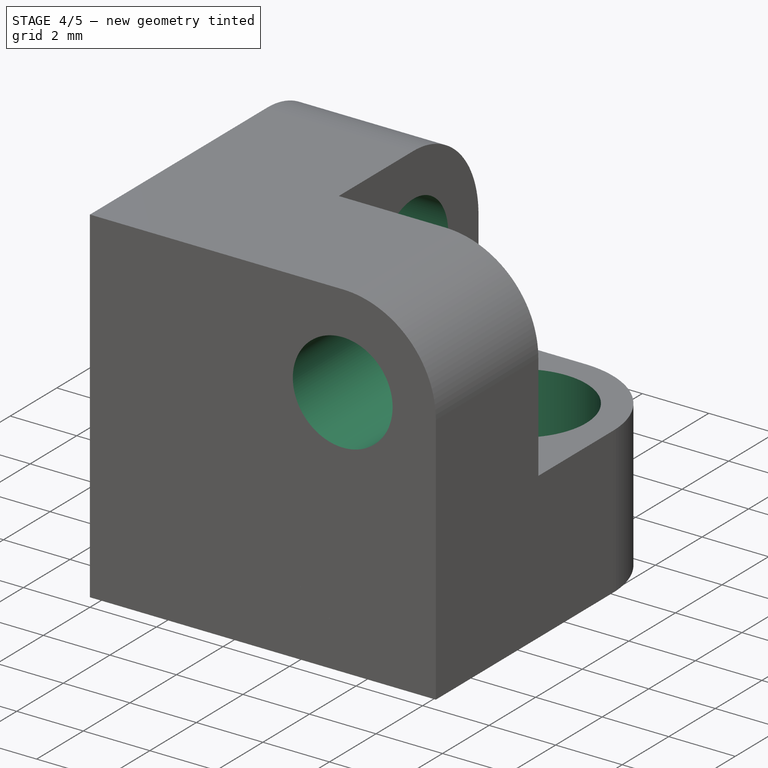
[diagram: stage 4 of 5 — iso view after this stage's code; geometry added in this stage tinted green]
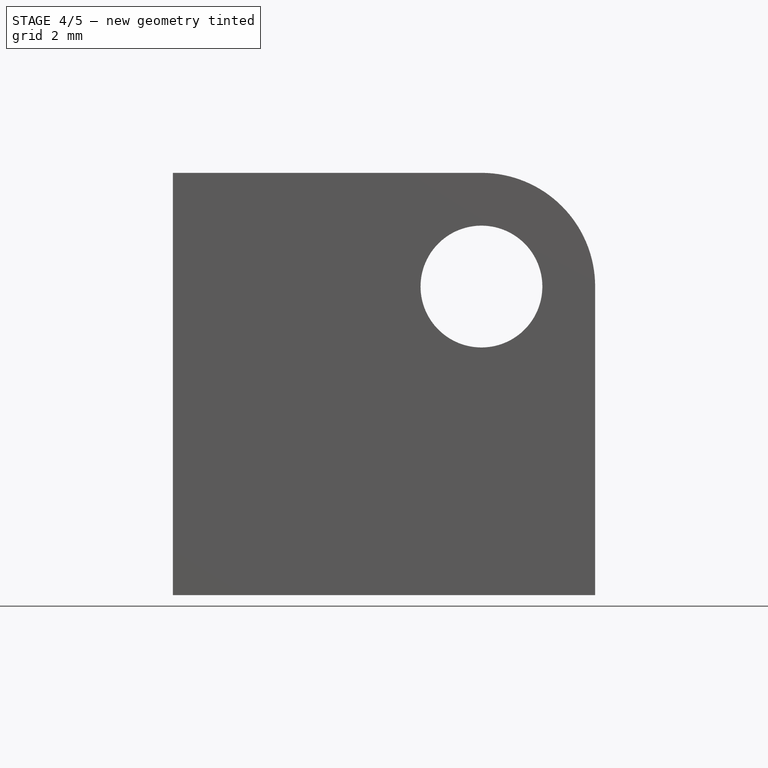
[diagram: stage 4 of 5 — front view after this stage's code; geometry added in this stage tinted green]
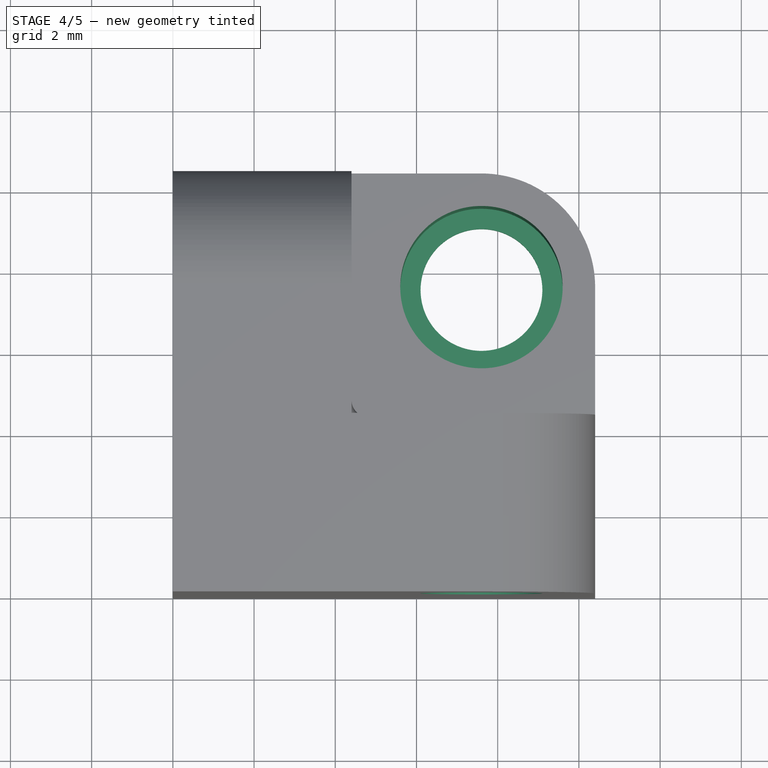
[diagram: stage 4 of 5 — top view after this stage's code; geometry added in this stage tinted green]
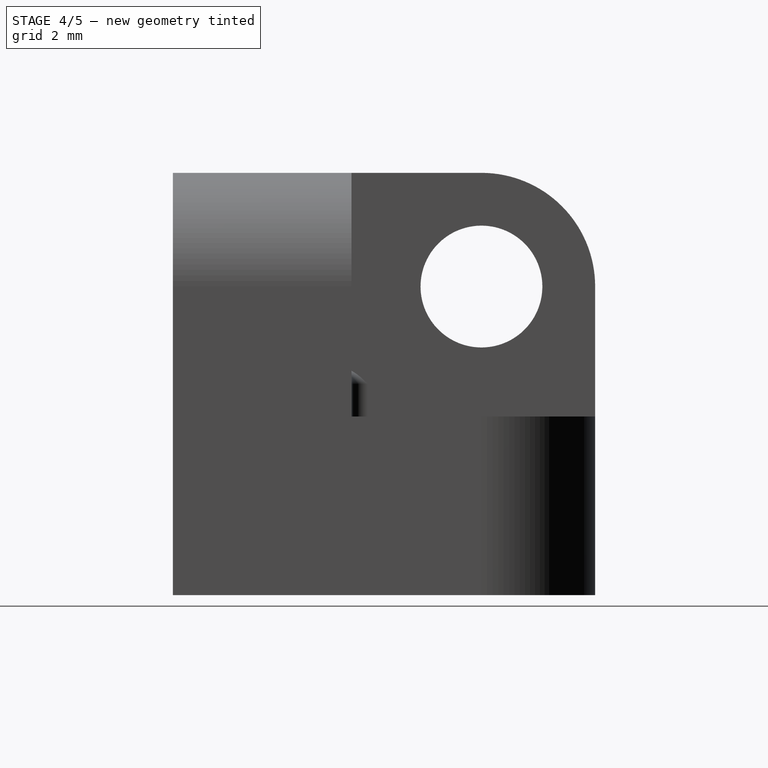
[diagram: stage 4 of 5 — right view after this stage's code; geometry added in this stage tinted green]
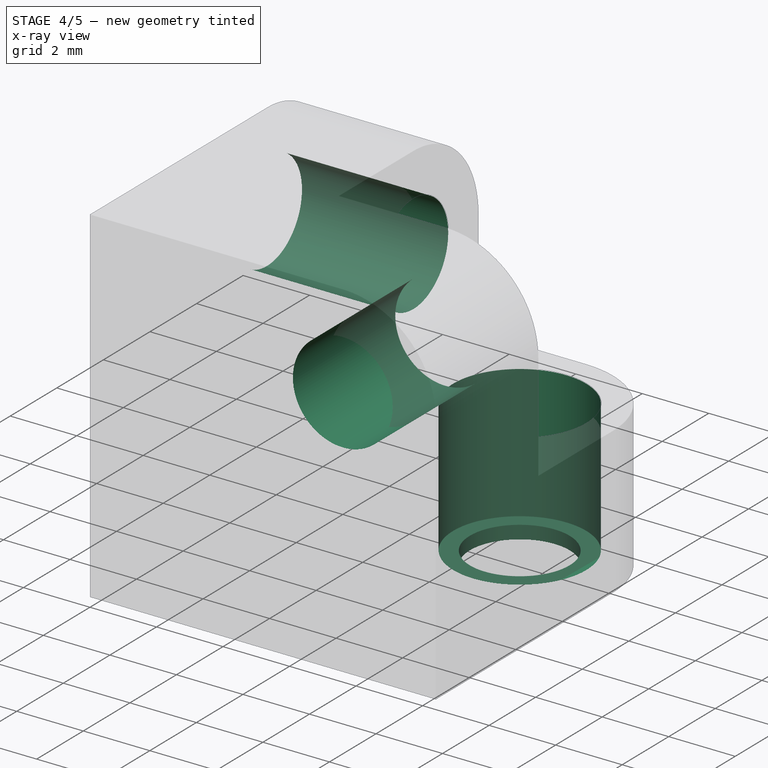
[diagram: stage 4 of 5 — x-ray composite at the iso view; earlier geometry ghosted, this stage's added geometry solid]
FEATURE [PartDesign::Pocket] Pocket  label="L Hole"
  BaseFeature = -> AdditiveLoft002
  Direction = (-1,0,0)
  Length = 100
  Length2 = 5
  Placement = pos=(0,4.4,-1e-15) rot=(1,0,0;1.5708rad)
  Profile = -> Sketch002
  ReferenceAxis = -> Sketch002 [N_Axis]
  Refine = true
  SideType = 2
  Suppressed = false
  Type = 0
  Type2 = 0
FEATURE [PartDesign::Pocket] Pocket001  label="R Hole"
  BaseFeature = -> Pocket
  Direction = (0,1,-2e-16)
  Length = 100
  Length2 = 5
  Placement = pos=(0,4.4,-1e-15) rot=(1,0,0;1.5708rad)
  Profile = -> Sketch004
  ReferenceAxis = -> Sketch004 [N_Axis]
  Refine = true
  SideType = 2
  Suppressed = false
  Type = 0
  Type2 = 0
FEATURE [PartDesign::Pocket] Pocket002  label="Top Hole"
  BaseFeature = -> Pocket001
  Direction = (0,0,-1)
  Length = 100
  Length2 = 5
  Placement = pos=(0,4.4,-1e-15) rot=(1,0,0;1.5708rad)
  Profile = -> Sketch
  ReferenceAxis = -> Sketch [N_Axis]
  Refine = true
  SideType = 2
  Suppressed = false
  Type = 0
  Type2 = 0
FEATURE [PartDesign::Pocket] Pocket003  label="Top Nut"
  BaseFeature = -> Pocket002
  Direction = (0,0,-1)
  Length = 4
  Length2 = 5
  Placement = pos=(0,4.4,-1e-15) rot=(1,0,0;1.5708rad)
  Profile = -> Sketch001
  ReferenceAxis = -> Sketch001 [N_Axis]
  Refine = true
  SideType = 0
  Suppressed = false
  Type = 0
  Type2 = 0
  expr: Length = Spreadsheet.insert_depth_mm
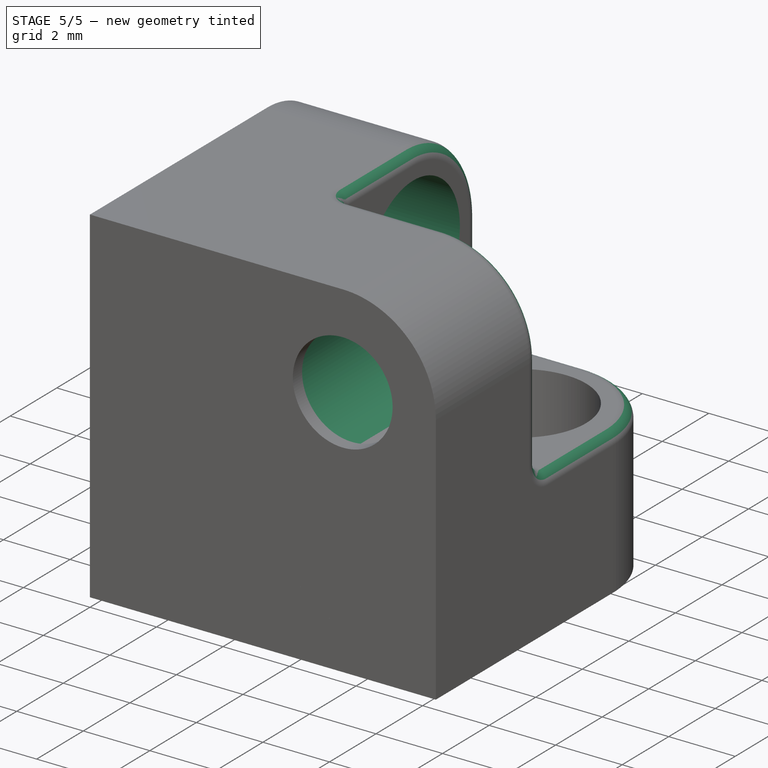
[diagram: stage 5 of 5 — iso view after this stage's code; geometry added in this stage tinted green]
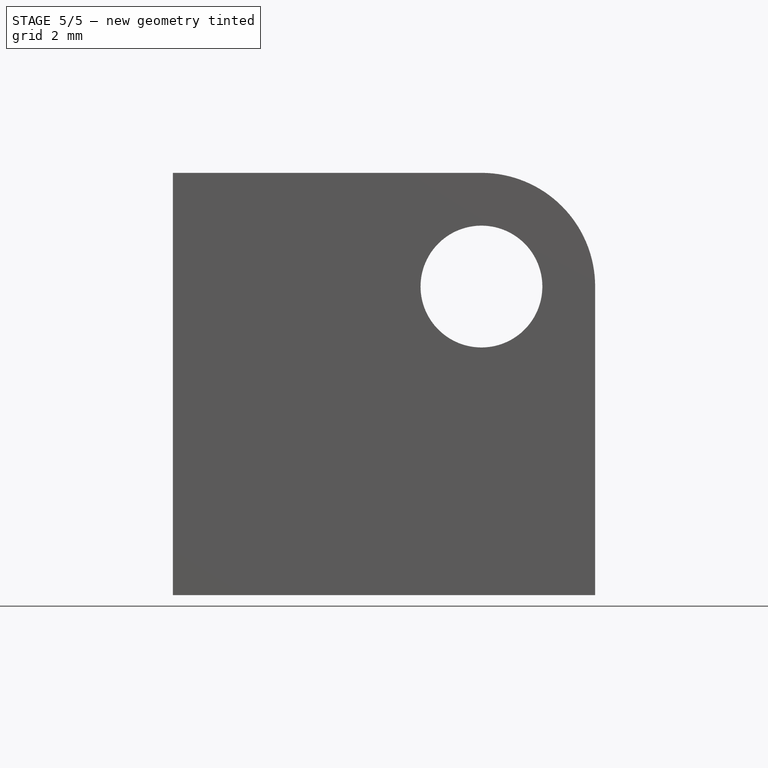
[diagram: stage 5 of 5 — front view after this stage's code; geometry added in this stage tinted green]
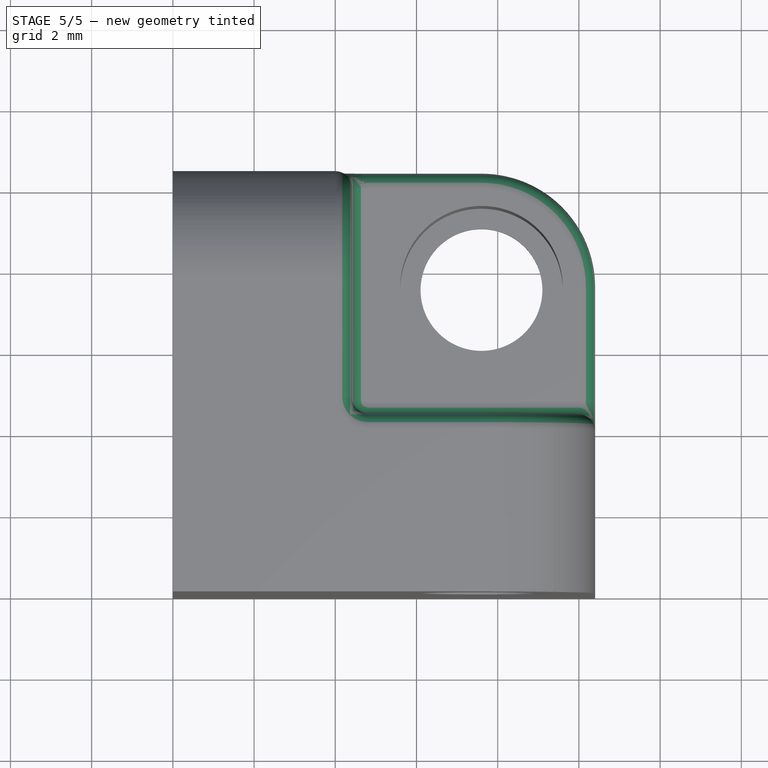
[diagram: stage 5 of 5 — top view after this stage's code; geometry added in this stage tinted green]
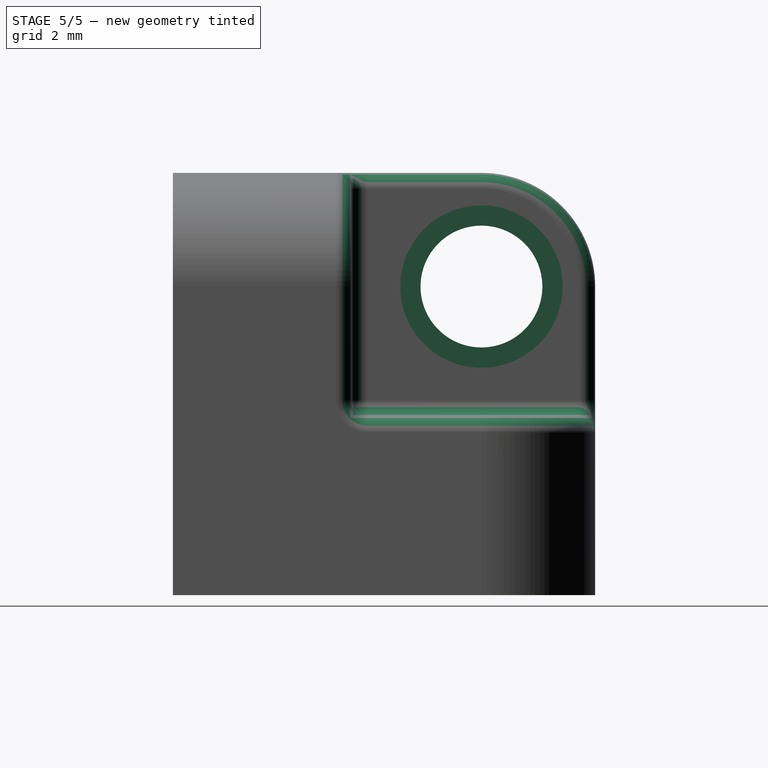
[diagram: stage 5 of 5 — right view after this stage's code; geometry added in this stage tinted green]
FEATURE [PartDesign::Pocket] Pocket004  label="L Nut"
  BaseFeature = -> Pocket003
  Direction = (-1,0,0)
  Length = 4
  Length2 = 5
  Placement = pos=(0,4.4,-1e-15) rot=(1,0,0;1.5708rad)
  Profile = -> Sketch003
  ReferenceAxis = -> Sketch003 [N_Axis]
  Refine = true
  SideType = 0
  Suppressed = false
  Type = 0
  Type2 = 0
  expr: Length = Spreadsheet.insert_depth_mm
FEATURE [PartDesign::Pocket] Pocket005  label="R Nut"
  BaseFeature = -> Pocket004
  Direction = (0,1,-2e-16)
  Length = 4
  Length2 = 5
  Placement = pos=(0,4.4,-1e-15) rot=(1,0,0;1.5708rad)
  Profile = -> Sketch005
  ReferenceAxis = -> Sketch005 [N_Axis]
  Refine = true
  Reversed = true
  SideType = 0
  Suppressed = false
  Type = 0
  Type2 = 0
  expr: Length = Spreadsheet.insert_depth_mm
FEATURE [PartDesign::Fillet] Fillet  label="Inner Fillet"
  Base = -> Pocket005 [Edge21,Edge4,Edge5]
  BaseFeature = -> Pocket005
  Placement = pos=(0,4.4,-1e-15) rot=(1,0,0;1.5708rad)
  Radius = 0.4
  Refine = true
  SupportTransform = false
  Suppressed = false
  UseAllEdges = false
  expr: Radius = Spreadsheet.fillet_radius_mm
FEATURE [PartDesign::Fillet] Fillet001  label="Outside Fillet"
  Base = -> Fillet [Edge53,Edge14,Edge18]
  BaseFeature = -> Fillet
  Placement = pos=(0,4.4,-1e-15) rot=(1,0,0;1.5708rad)
  Radius = 0.4
  Refine = true
  SupportTransform = false
  Suppressed = false
  UseAllEdges = false
  expr: Radius = Spreadsheet.fillet_radius_mm
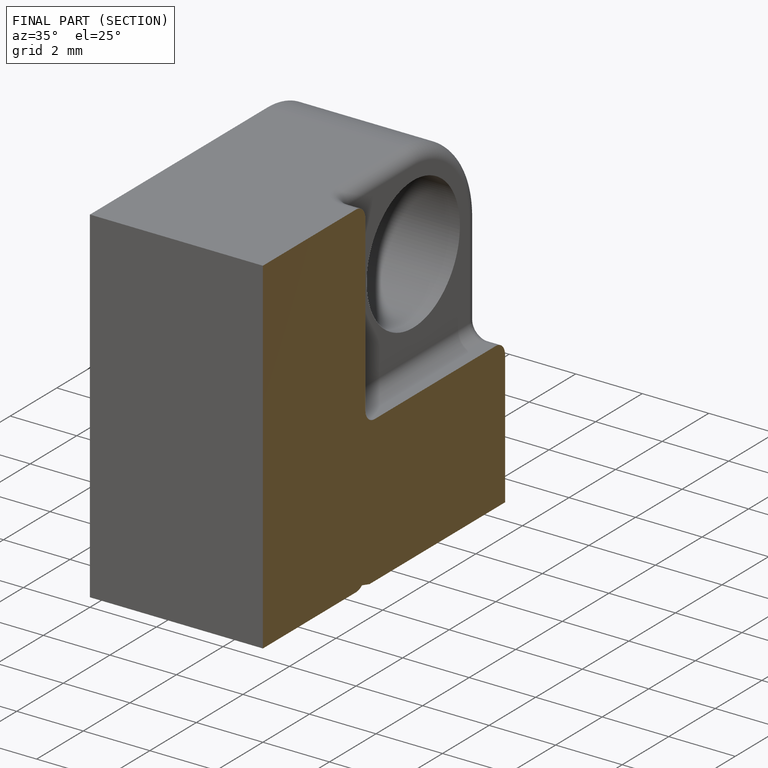
[diagram: finished part — half-section view (interior)]
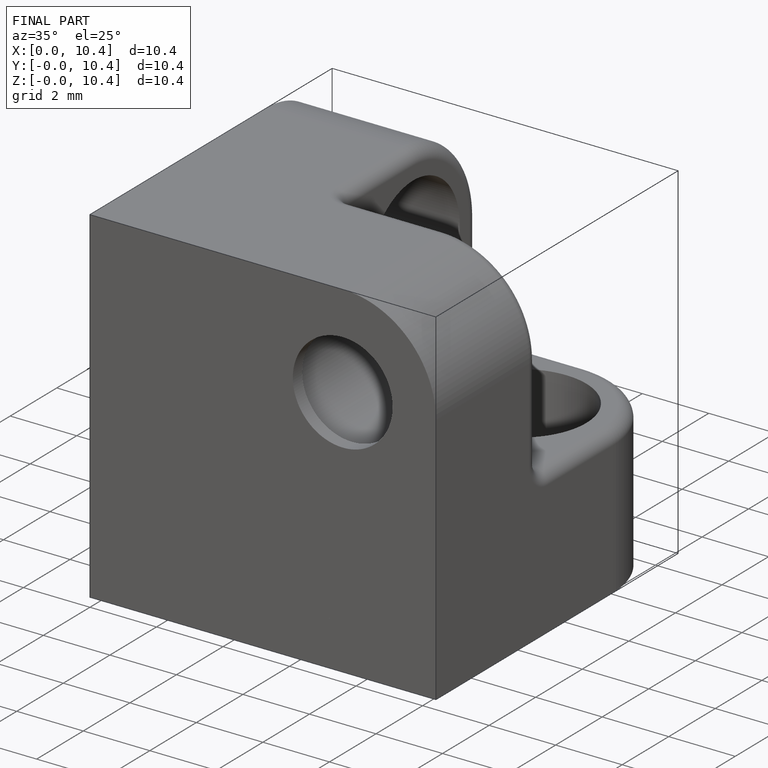
[diagram: finished part — iso view with bounding-box wireframe]
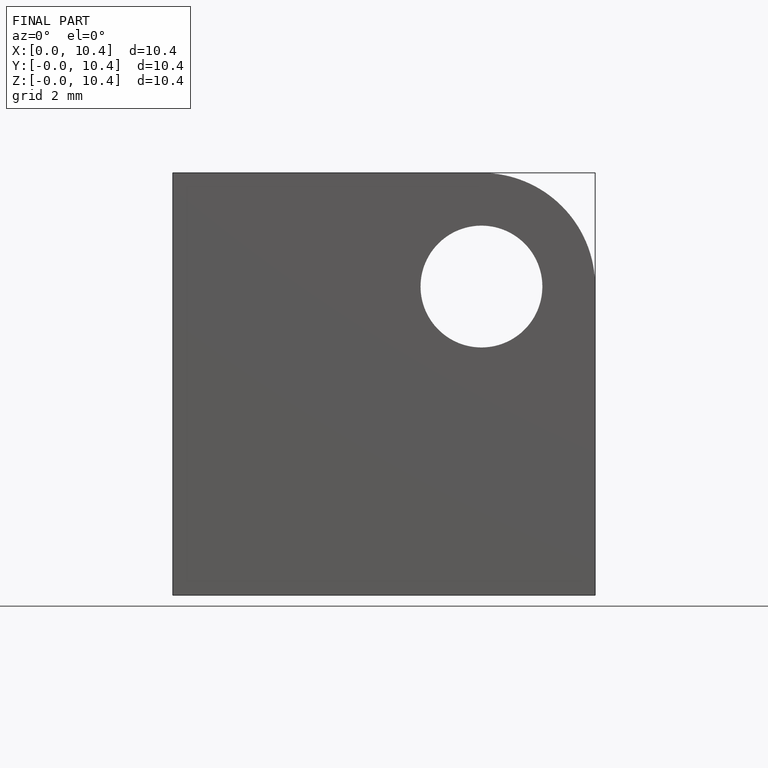
[diagram: finished part — front view with bounding-box wireframe]
